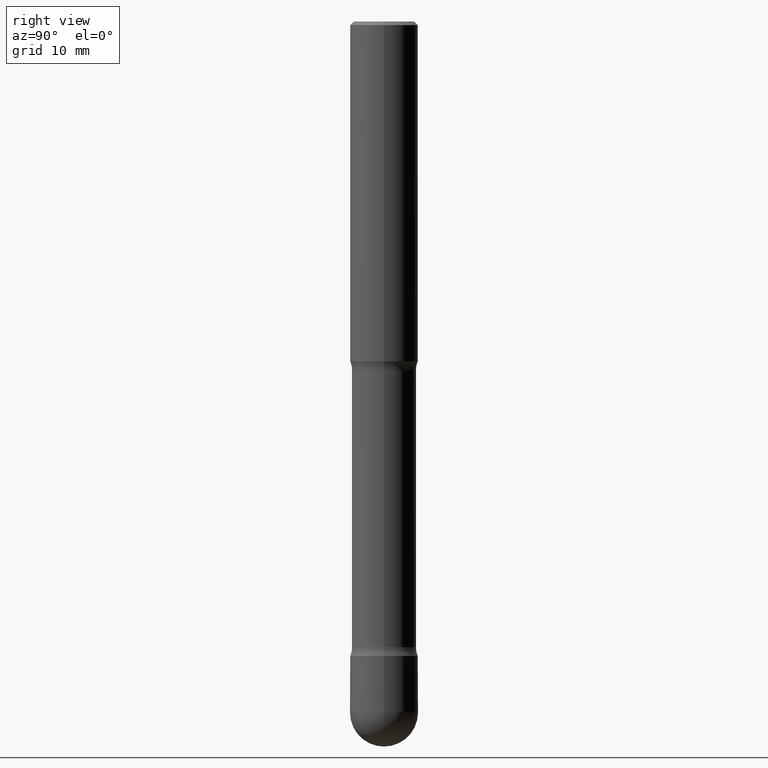
[diagram: clean part render]
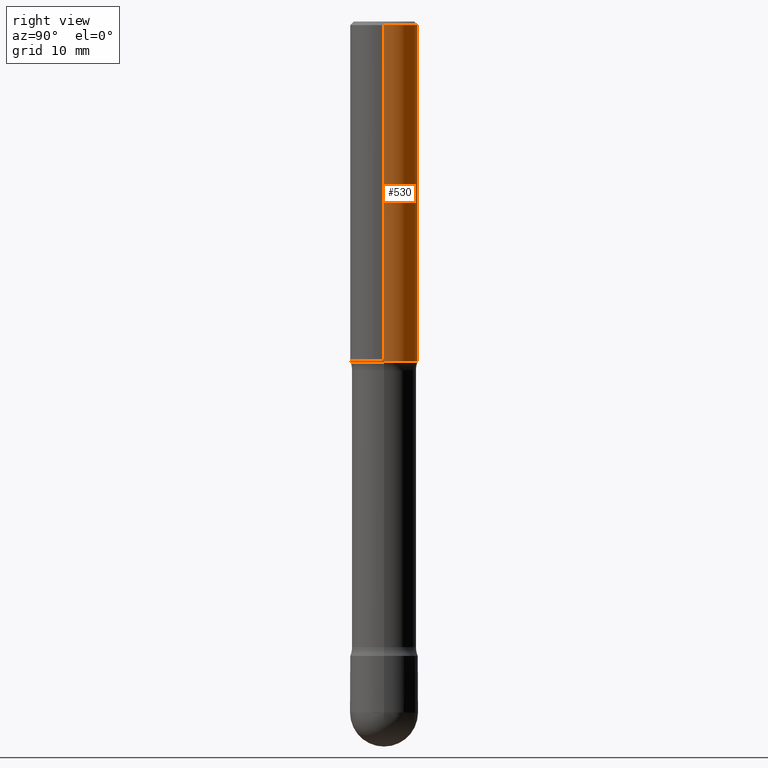
[diagram: same view with one face highlighted and labeled with its STEP entity id]
A machine part, right view. The second image highlights one B-rep face of the part: STEP entity #530.
In plain terms, the highlighted cylindrical surface (edge-blend (fillet) strip) has radius 4.7625 mm, axis along (0, -0, -1).
Its self-contained STEP definition (entity closure, byte-faithful):
#4 = AXIS2_PLACEMENT_3D ( 'NONE', #85, #219, #262 ) ;
#11 = AXIS2_PLACEMENT_3D ( 'NONE', #283, #417, #541 ) ;
#21 = AXIS2_PLACEMENT_3D ( 'NONE', #47, #364, #488 ) ;
#39 = VERTEX_POINT ( 'NONE', #284 ) ;
#40 = CIRCLE ( 'NONE', #4, 0.1874999999999997780 ) ;
#47 = CARTESIAN_POINT ( 'NONE',  ( 4.585254011597135603E-29, -6.546527510330903440E-15, -1.875000000000001776 ) ) ;
#80 = VERTEX_POINT ( 'NONE', #382 ) ;
#85 = CARTESIAN_POINT ( 'NONE',  ( 4.890937612370220610E-31, -6.982962677686216421E-17, -0.01999999999999978531 ) ) ;
#90 = CARTESIAN_POINT ( 'NONE',  ( 0.1874999999999999167, -1.350652806053316993E-14, -3.500000000000000000 ) ) ;
#99 = VERTEX_POINT ( 'NONE', #243 ) ;
#100 = CYLINDRICAL_SURFACE ( 'NONE', #11, 0.1874999999999999167 ) ;
#102 = VECTOR ( 'NONE', #148, 39.37007874015748143 ) ;
#106 = VECTOR ( 'NONE', #309, 39.37007874015748143 ) ;
#110 = EDGE_CURVE ( 'NONE', #484, #80, #457, .T. ) ;
#139 = EDGE_LOOP ( 'NONE', ( #269, #207, #258, #232 ) ) ;
#148 = DIRECTION ( 'NONE',  ( 2.445468806185136877E-29, -3.491481338843145188E-15, -1.000000000000000000 ) ) ;
#178 = LINE ( 'NONE', #90, #106 ) ;
#207 = ORIENTED_EDGE ( 'NONE', *, *, #334, .T. ) ;
#219 = DIRECTION ( 'NONE',  ( 2.445468806185136597E-29, -3.491481338843145583E-15, -1.000000000000000000 ) ) ;
#232 = ORIENTED_EDGE ( 'NONE', *, *, #110, .F. ) ;
#243 = CARTESIAN_POINT ( 'NONE',  ( 0.1874999999999997780, -1.356173001359022705E-15, -0.01999999999999978531 ) ) ;
#258 = ORIENTED_EDGE ( 'NONE', *, *, #273, .F. ) ;
#262 = DIRECTION ( 'NONE',  ( -1.000000000000000000, 6.982962677686265133E-15, 0.000000000000000000 ) ) ;
#269 = ORIENTED_EDGE ( 'NONE', *, *, #433, .T. ) ;
#273 = EDGE_CURVE ( 'NONE', #80, #39, #421, .T. ) ;
#283 = CARTESIAN_POINT ( 'NONE',  ( 8.559140821647976968E-29, -1.222018468595100934E-14, -3.500000000000000000 ) ) ;
#284 = CARTESIAN_POINT ( 'NONE',  ( 0.1874999999999999722, -4.594521943136043171E-15, -1.875000000000001776 ) ) ;
#309 = DIRECTION ( 'NONE',  ( 2.445468806185136877E-29, -3.491481338843145188E-15, -1.000000000000000000 ) ) ;
#334 = EDGE_CURVE ( 'NONE', #99, #39, #178, .T. ) ;
#364 = DIRECTION ( 'NONE',  ( 2.445468806185136597E-29, -3.491481338843145583E-15, -1.000000000000000000 ) ) ;
#368 = CARTESIAN_POINT ( 'NONE',  ( -0.1874999999999997780, 1.239475875289311118E-15, -0.01999999999999978531 ) ) ;
#370 = FACE_OUTER_BOUND ( 'NONE', #139, .T. ) ;
#382 = CARTESIAN_POINT ( 'NONE',  ( -0.1875000000000000278, -5.237222008264728432E-15, -1.875000000000001776 ) ) ;
#417 = DIRECTION ( 'NONE',  ( 2.445468806185136597E-29, -3.491481338843145583E-15, -1.000000000000000000 ) ) ;
#421 = CIRCLE ( 'NONE', #21, 0.1875000000000000278 ) ;
#433 = EDGE_CURVE ( 'NONE', #484, #99, #40, .T. ) ;
#456 = CARTESIAN_POINT ( 'NONE',  ( -0.1874999999999999167, -1.091087918388483433E-14, -3.500000000000000000 ) ) ;
#457 = LINE ( 'NONE', #456, #102 ) ;
#484 = VERTEX_POINT ( 'NONE', #368 ) ;
#488 = DIRECTION ( 'NONE',  ( -1.000000000000000000, 6.982962677686266711E-15, 0.000000000000000000 ) ) ;
#530 = ADVANCED_FACE ( 'NONE', ( #370 ), #100, .T. ) ;
#541 = DIRECTION ( 'NONE',  ( -1.000000000000000000, 6.982962677686265922E-15, 0.000000000000000000 ) ) ;